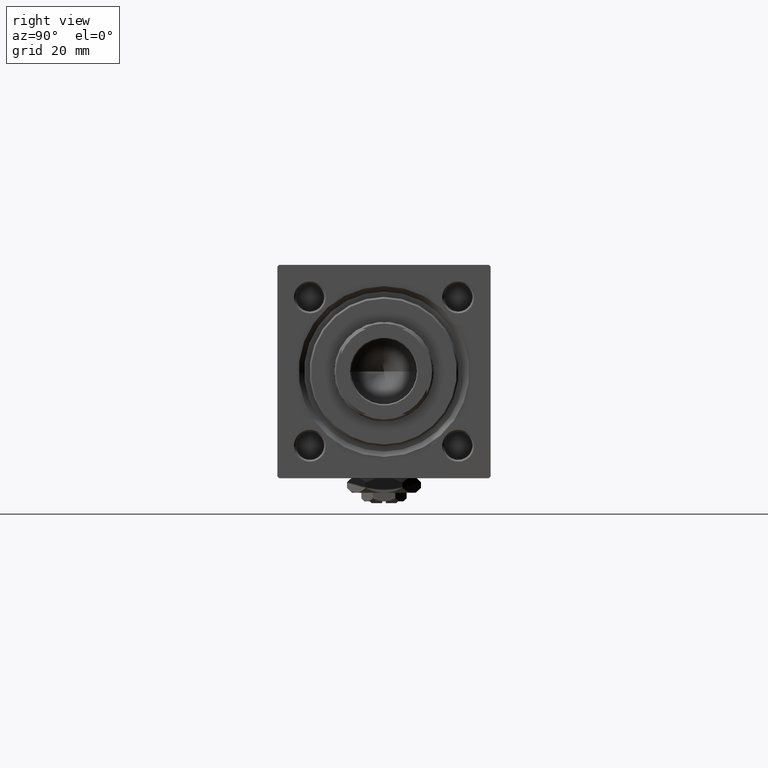
[diagram: clean part render]
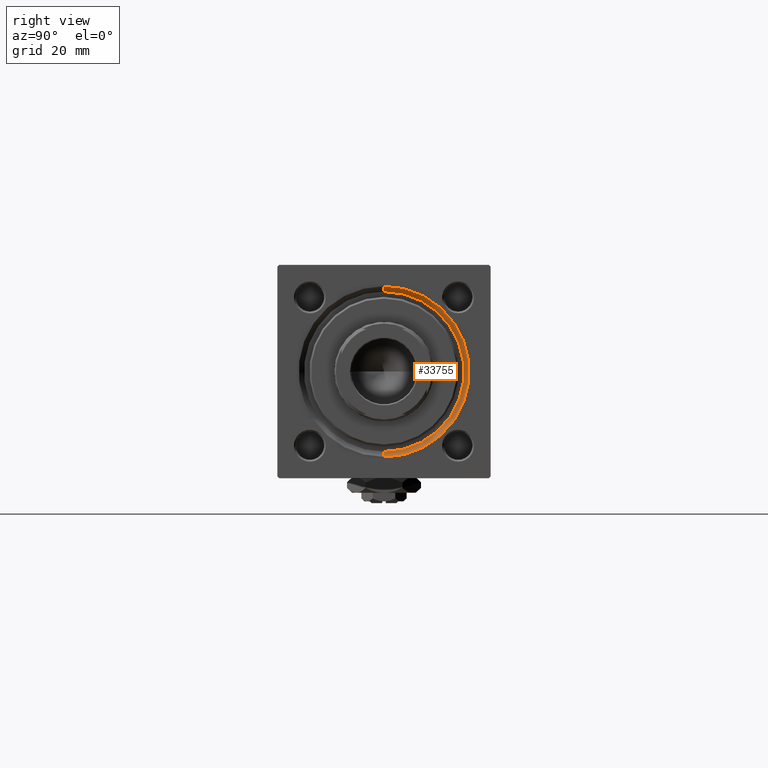
[diagram: same view with one face highlighted and labeled with its STEP entity id]
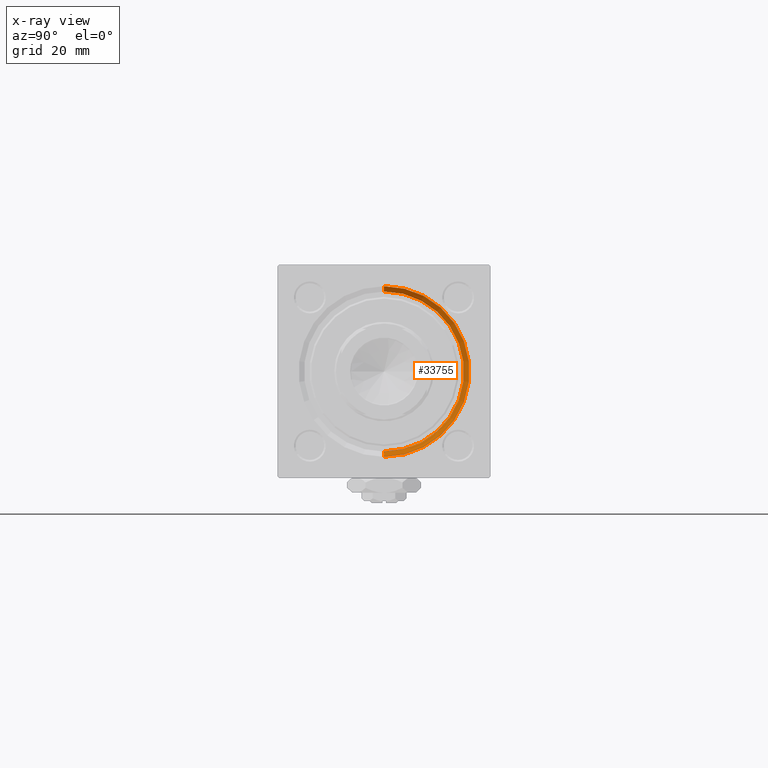
[diagram: x-ray of the same camera — body ghosted, the highlighted face saturated]
A machine part, right view. The second image highlights one B-rep face of the part: STEP entity #33755.
The next image is the same camera in x-ray: the body ghosted, the highlighted face saturated — about 0% of this face is hidden behind the body in this view.
In plain terms, the highlighted conical surface has half-angle 45 deg.
Its self-contained STEP definition (entity closure, byte-faithful):
#761 = DIRECTION ( 'NONE',  ( 0.7071067811865524577, 8.659560562354874926E-17, 0.7071067811865426878 ) ) ;
#796 = DIRECTION ( 'NONE',  ( 0.000000000000000000, 0.000000000000000000, 1.000000000000000000 ) ) ;
#3331 = VERTEX_POINT ( 'NONE', #35014 ) ;
#7547 = ORIENTED_EDGE ( 'NONE', *, *, #14738, .F. ) ;
#7798 = CARTESIAN_POINT ( 'NONE',  ( 148.0000000000000000, 0.000000000000000000, 0.000000000000000000 ) ) ;
#8883 = FACE_OUTER_BOUND ( 'NONE', #48288, .T. ) ;
#10474 = DIRECTION ( 'NONE',  ( 0.7071067811865524577, 0.000000000000000000, -0.7071067811865426878 ) ) ;
#10599 = CONICAL_SURFACE ( 'NONE', #45010, 22.50000000000000355, 0.7853981633974415066 ) ;
#13147 = EDGE_CURVE ( 'NONE', #3331, #43676, #21824, .T. ) ;
#14738 = EDGE_CURVE ( 'NONE', #37257, #25667, #46984, .T. ) ;
#15218 = CARTESIAN_POINT ( 'NONE',  ( 148.0000000000000000, 2.939152317953652628E-15, 24.00000000000003908 ) ) ;
#15419 = DIRECTION ( 'NONE',  ( -1.000000000000000000, 0.000000000000000000, -0.000000000000000000 ) ) ;
#16755 = CARTESIAN_POINT ( 'NONE',  ( 146.4999999999999432, 0.000000000000000000, 0.000000000000000000 ) ) ;
#20979 = CARTESIAN_POINT ( 'NONE',  ( 146.4999999999999432, 2.755455298081545172E-15, 22.50000000000000355 ) ) ;
#21005 = AXIS2_PLACEMENT_3D ( 'NONE', #44426, #24448, #796 ) ;
#21824 = CIRCLE ( 'NONE', #21005, 22.50000000000000355 ) ;
#24342 = AXIS2_PLACEMENT_3D ( 'NONE', #7798, #15419, #43787 ) ;
#24448 = DIRECTION ( 'NONE',  ( 1.000000000000000000, 0.000000000000000000, 0.000000000000000000 ) ) ;
#25667 = VERTEX_POINT ( 'NONE', #44307 ) ;
#27538 = ORIENTED_EDGE ( 'NONE', *, *, #28273, .F. ) ;
#28069 = ORIENTED_EDGE ( 'NONE', *, *, #13147, .F. ) ;
#28273 = EDGE_CURVE ( 'NONE', #43676, #37257, #28881, .T. ) ;
#28854 = DIRECTION ( 'NONE',  ( 0.000000000000000000, 0.000000000000000000, -1.000000000000000000 ) ) ;
#28881 = LINE ( 'NONE', #20979, #29795 ) ;
#29379 = ORIENTED_EDGE ( 'NONE', *, *, #32347, .T. ) ;
#29795 = VECTOR ( 'NONE', #761, 1000.000000000000000 ) ;
#30968 = LINE ( 'NONE', #47249, #40751 ) ;
#31951 = CARTESIAN_POINT ( 'NONE',  ( 146.4999999999999432, 2.755455298081545172E-15, 22.50000000000000355 ) ) ;
#32347 = EDGE_CURVE ( 'NONE', #3331, #25667, #30968, .T. ) ;
#32802 = DIRECTION ( 'NONE',  ( 1.000000000000000000, 0.000000000000000000, 0.000000000000000000 ) ) ;
#33755 = ADVANCED_FACE ( 'NONE', ( #8883 ), #10599, .F. ) ;
#35014 = CARTESIAN_POINT ( 'NONE',  ( 146.4999999999999432, 0.000000000000000000, -22.50000000000000355 ) ) ;
#37257 = VERTEX_POINT ( 'NONE', #15218 ) ;
#40751 = VECTOR ( 'NONE', #10474, 1000.000000000000000 ) ;
#43676 = VERTEX_POINT ( 'NONE', #31951 ) ;
#43787 = DIRECTION ( 'NONE',  ( 0.000000000000000000, 0.000000000000000000, 1.000000000000000000 ) ) ;
#44307 = CARTESIAN_POINT ( 'NONE',  ( 148.0000000000000000, 0.000000000000000000, -24.00000000000003908 ) ) ;
#44426 = CARTESIAN_POINT ( 'NONE',  ( 146.4999999999999432, 0.000000000000000000, 0.000000000000000000 ) ) ;
#45010 = AXIS2_PLACEMENT_3D ( 'NONE', #16755, #32802, #28854 ) ;
#46984 = CIRCLE ( 'NONE', #24342, 24.00000000000003908 ) ;
#47249 = CARTESIAN_POINT ( 'NONE',  ( 146.4999999999999432, 0.000000000000000000, -22.50000000000000355 ) ) ;
#48288 = EDGE_LOOP ( 'NONE', ( #27538, #28069, #29379, #7547 ) ) ;